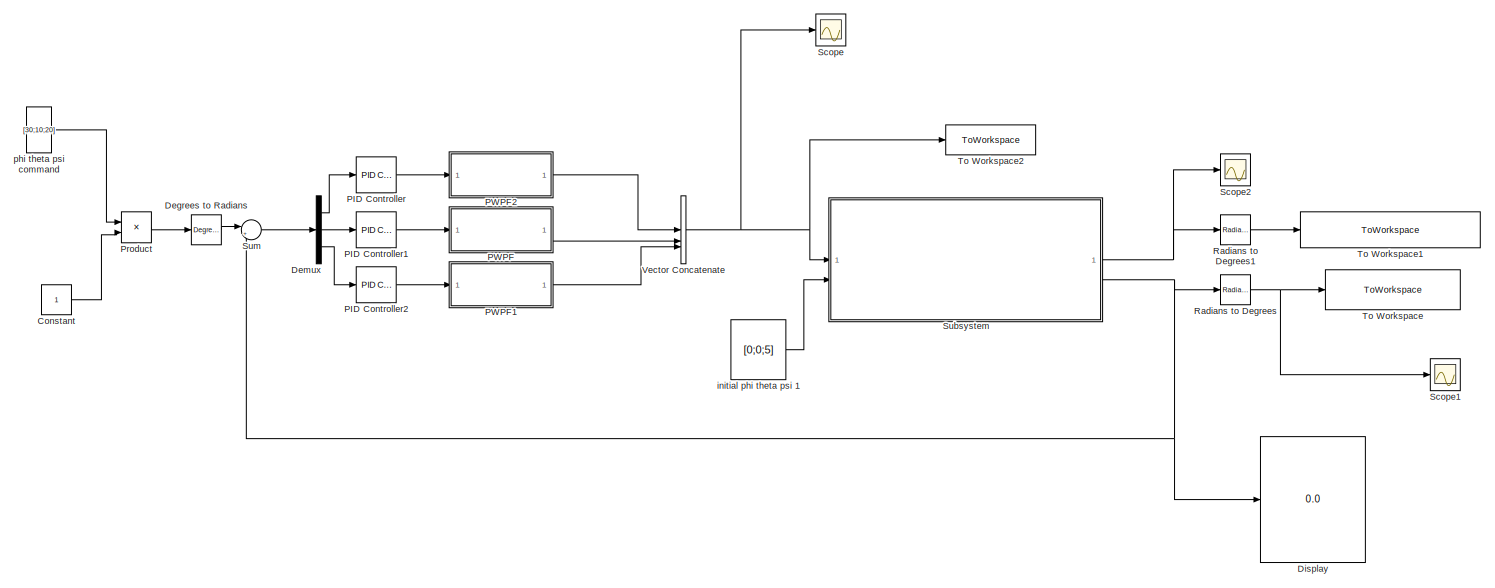
[diagram: root canvas - part 1/2, top center region]
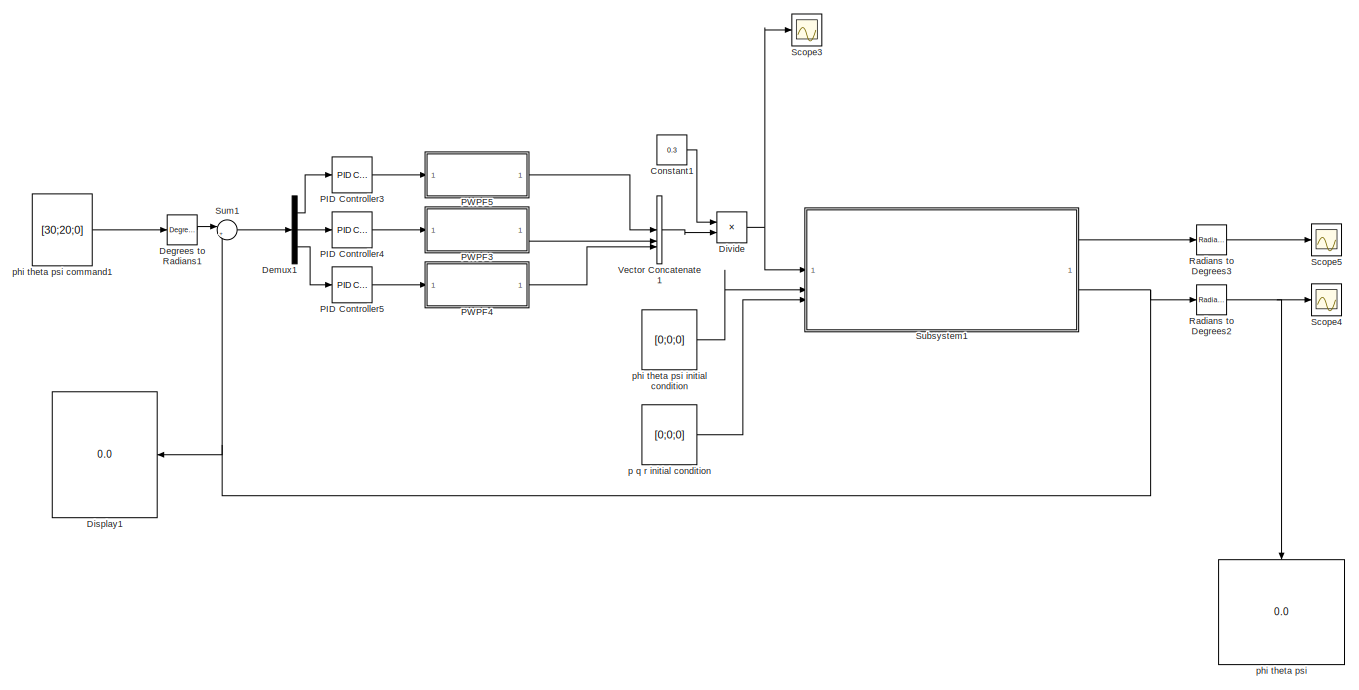
[diagram: root canvas - part 2/2, bottom right region]
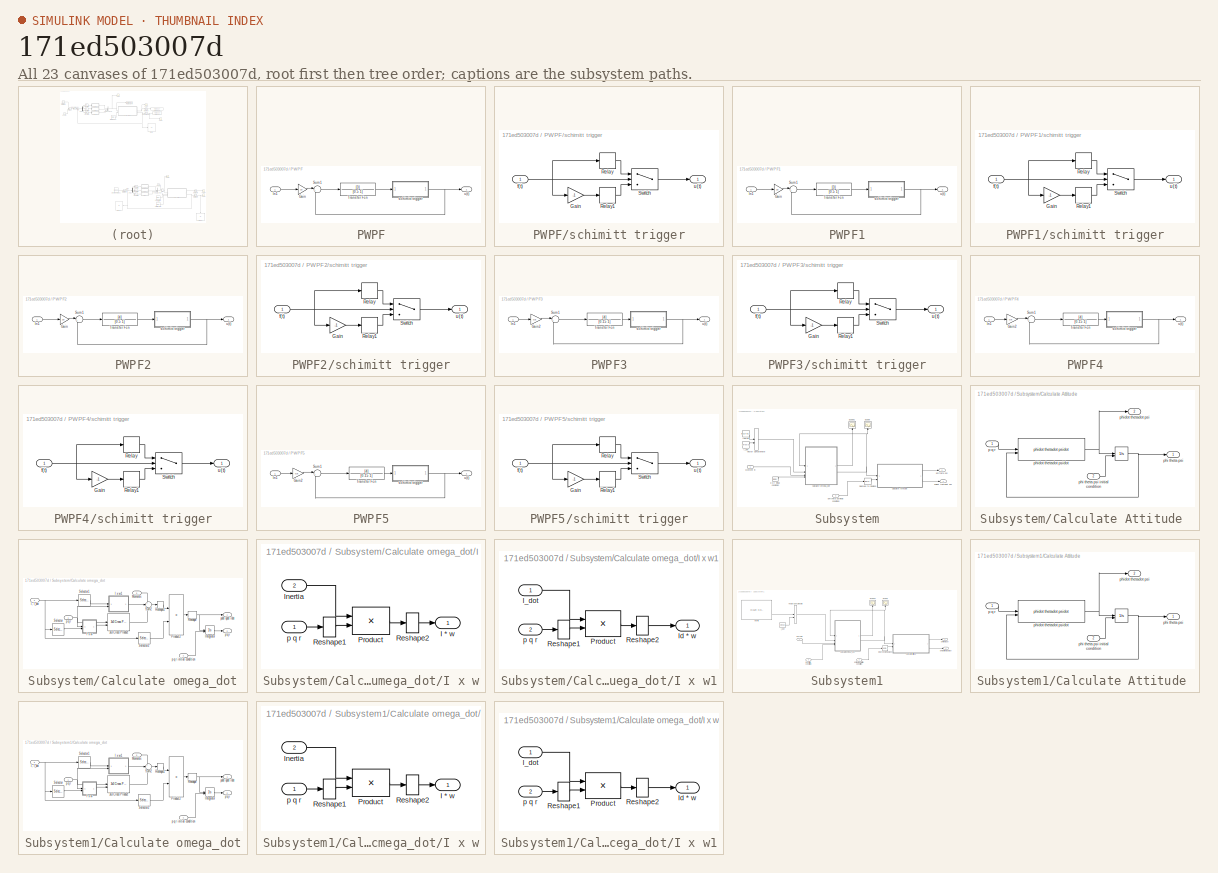
[diagram: thumbnail index - all 23 canvases of the model, root first then tree order]
MODEL slx_171ed503007d
KIND model
CONFIG AbsTol = auto
CONFIG EnableMultiTasking = off
CONFIG FixedStep = 0.001
CONFIG MaxStep = auto
CONFIG MinStep = auto
CONFIG RelTol = 1e-3
CONFIG SampleTimeConstraint = Unconstrained
CONFIG SolverName = FixedStepAuto
CONFIG StartTime = 0
CONFIG StopTime = 250
BLOCK [Constant]  phi theta psi initial condition
  Value = [0;0;0]
BLOCK [Constant] Constant
  Commented = on
BLOCK [Constant] Constant1
  Value = 0.3
BLOCK [Reference] Degrees to Radians  REF=simulink_extras/Transformations/Degrees to
Radians
  Commented = on
  SourceBlock = simulink_extras/Transformations/Degrees to\nRadians
  SourceType = DegreesToRadians
BLOCK [Reference] Degrees to Radians1  REF=simulink_extras/Transformations/Degrees to
Radians
  SourceBlock = simulink_extras/Transformations/Degrees to\nRadians
  SourceType = DegreesToRadians
BLOCK [Demux] Demux
  Commented = on
  Outputs = 3
BLOCK [Demux] Demux1
  Outputs = 3
BLOCK [Display] Display
  Commented = on
  Decimation = 1
BLOCK [Display] Display1
  Decimation = 1
  NameLocation = top
BLOCK [Product] Divide
  Inputs = **
BLOCK [Reference] PID Controller  REF=slpidlib/PID Controller
  Commented = on
  LibrarySourceBlock = simulink/Continuous/PID Controller
  SourceBlock = slpidlib/PID Controller
  SourceType = PID 1dof
BLOCK [Reference] PID Controller1  REF=slpidlib/PID Controller
  Commented = on
  LibrarySourceBlock = simulink/Continuous/PID Controller
  SourceBlock = slpidlib/PID Controller
  SourceType = PID 1dof
BLOCK [Reference] PID Controller2  REF=slpidlib/PID Controller
  Commented = on
  LibrarySourceBlock = simulink/Continuous/PID Controller
  SourceBlock = slpidlib/PID Controller
  SourceType = PID 1dof
BLOCK [Reference] PID Controller3  REF=slpidlib/PID Controller
  LibrarySourceBlock = simulink/Continuous/PID Controller
  SourceBlock = slpidlib/PID Controller
  SourceType = PID 1dof
BLOCK [Reference] PID Controller4  REF=slpidlib/PID Controller
  LibrarySourceBlock = simulink/Continuous/PID Controller
  SourceBlock = slpidlib/PID Controller
  SourceType = PID 1dof
BLOCK [Reference] PID Controller5  REF=slpidlib/PID Controller
  LibrarySourceBlock = simulink/Continuous/PID Controller
  SourceBlock = slpidlib/PID Controller
  SourceType = PID 1dof
BLOCK [SubSystem] PWPF
  Commented = on
BLOCK [Gain] PWPF/Gain
  Gain = 10
BLOCK [Inport] PWPF/In1
BLOCK [Sum] PWPF/Sum1
  Inputs = |+-
BLOCK [TransferFcn] PWPF/Transfer Fcn
  Denominator = [0.5 1]
  Numerator = [3]
BLOCK [SubSystem] PWPF/schimitt trigger
BLOCK [Gain] PWPF/schimitt trigger/Gain
  Gain = -1
BLOCK [Relay] PWPF/schimitt trigger/Relay
  OffSwitchValue = 0.15
  OnOutputValue = 10
  OnSwitchValue = 0.5
BLOCK [Relay] PWPF/schimitt trigger/Relay1
  OffSwitchValue = 0.15
  OnOutputValue = -10
  OnSwitchValue = 0.5
BLOCK [Switch] PWPF/schimitt trigger/Switch
  Criteria = u2 > Threshold
  InputSameDT = off
  SaturateOnIntegerOverflow = off
BLOCK [Inport] PWPF/schimitt trigger/f(t)
BLOCK [Outport] PWPF/schimitt trigger/u(t)
BLOCK [Outport] PWPF/u(t)
BLOCK [SubSystem] PWPF1
  Commented = on
BLOCK [Gain] PWPF1/Gain
  Gain = 10
BLOCK [Inport] PWPF1/In1
BLOCK [Sum] PWPF1/Sum1
  Inputs = |+-
BLOCK [TransferFcn] PWPF1/Transfer Fcn
  Denominator = [0.5 1]
  Numerator = [3]
BLOCK [SubSystem] PWPF1/schimitt trigger
BLOCK [Gain] PWPF1/schimitt trigger/Gain
  Gain = -1
BLOCK [Relay] PWPF1/schimitt trigger/Relay
  OffSwitchValue = 0.15
  OnOutputValue = 10
  OnSwitchValue = 0.5
BLOCK [Relay] PWPF1/schimitt trigger/Relay1
  OffSwitchValue = 0.15
  OnOutputValue = -10
  OnSwitchValue = 0.5
BLOCK [Switch] PWPF1/schimitt trigger/Switch
  Criteria = u2 > Threshold
  InputSameDT = off
  SaturateOnIntegerOverflow = off
BLOCK [Inport] PWPF1/schimitt trigger/f(t)
BLOCK [Outport] PWPF1/schimitt trigger/u(t)
BLOCK [Outport] PWPF1/u(t)
BLOCK [SubSystem] PWPF2
  Commented = on
BLOCK [Gain] PWPF2/Gain
  Gain = 20
BLOCK [Inport] PWPF2/In1
BLOCK [Sum] PWPF2/Sum1
  Inputs = |+-
BLOCK [TransferFcn] PWPF2/Transfer Fcn
  Denominator = [0.5 1]
  Numerator = [4]
BLOCK [SubSystem] PWPF2/schimitt trigger
BLOCK [Gain] PWPF2/schimitt trigger/Gain
  Gain = -1
BLOCK [Relay] PWPF2/schimitt trigger/Relay
  OffSwitchValue = 0.15
  OnOutputValue = 10
  OnSwitchValue = 0.45
BLOCK [Relay] PWPF2/schimitt trigger/Relay1
  OffSwitchValue = 0.15
  OnOutputValue = -10
  OnSwitchValue = 0.45
BLOCK [Switch] PWPF2/schimitt trigger/Switch
  Criteria = u2 > Threshold
  InputSameDT = off
  SaturateOnIntegerOverflow = off
BLOCK [Inport] PWPF2/schimitt trigger/f(t)
BLOCK [Outport] PWPF2/schimitt trigger/u(t)
BLOCK [Outport] PWPF2/u(t)
BLOCK [SubSystem] PWPF3
BLOCK [Gain] PWPF3/Gain2
  Gain = 0.8
BLOCK [Inport] PWPF3/In1
BLOCK [Sum] PWPF3/Sum1
  Inputs = |+-
BLOCK [TransferFcn] PWPF3/Transfer Fcn
  Denominator = [0.15 1]
  Numerator = [4]
BLOCK [SubSystem] PWPF3/schimitt trigger
BLOCK [Gain] PWPF3/schimitt trigger/Gain
  Gain = -1
BLOCK [Relay] PWPF3/schimitt trigger/Relay
  OffSwitchValue = 0.15
  OnOutputValue = 4.5
  OnSwitchValue = 0.5
BLOCK [Relay] PWPF3/schimitt trigger/Relay1
  OffSwitchValue = 0.15
  OnOutputValue = -4.5
  OnSwitchValue = 0.5
BLOCK [Switch] PWPF3/schimitt trigger/Switch
  Criteria = u2 > Threshold
  InputSameDT = off
  SaturateOnIntegerOverflow = off
BLOCK [Inport] PWPF3/schimitt trigger/f(t)
BLOCK [Outport] PWPF3/schimitt trigger/u(t)
BLOCK [Outport] PWPF3/u(t)
BLOCK [SubSystem] PWPF4
BLOCK [Gain] PWPF4/Gain2
  Gain = 0.8
BLOCK [Inport] PWPF4/In1
BLOCK [Sum] PWPF4/Sum1
  Inputs = |+-
BLOCK [TransferFcn] PWPF4/Transfer Fcn
  Denominator = [0.15 1]
  Numerator = [4]
BLOCK [SubSystem] PWPF4/schimitt trigger
BLOCK [Gain] PWPF4/schimitt trigger/Gain
  Gain = -1
BLOCK [Relay] PWPF4/schimitt trigger/Relay
  OffSwitchValue = 0.15
  OnOutputValue = 4.5
  OnSwitchValue = 0.5
BLOCK [Relay] PWPF4/schimitt trigger/Relay1
  OffSwitchValue = 0.15
  OnOutputValue = -4.5
  OnSwitchValue = 0.5
BLOCK [Switch] PWPF4/schimitt trigger/Switch
  Criteria = u2 > Threshold
  InputSameDT = off
  SaturateOnIntegerOverflow = off
BLOCK [Inport] PWPF4/schimitt trigger/f(t)
BLOCK [Outport] PWPF4/schimitt trigger/u(t)
BLOCK [Outport] PWPF4/u(t)
BLOCK [SubSystem] PWPF5
BLOCK [Gain] PWPF5/Gain2
  Gain = 0.8
BLOCK [Inport] PWPF5/In1
BLOCK [Sum] PWPF5/Sum1
  Inputs = |+-
BLOCK [TransferFcn] PWPF5/Transfer Fcn
  Denominator = [0.15 1]
  Numerator = [4]
BLOCK [SubSystem] PWPF5/schimitt trigger
BLOCK [Gain] PWPF5/schimitt trigger/Gain
  Gain = -1
BLOCK [Relay] PWPF5/schimitt trigger/Relay
  OffSwitchValue = 0.15
  OnOutputValue = 4.5
  OnSwitchValue = 0.5
BLOCK [Relay] PWPF5/schimitt trigger/Relay1
  OffSwitchValue = 0.15
  OnOutputValue = -4.5
  OnSwitchValue = 0.5
BLOCK [Switch] PWPF5/schimitt trigger/Switch
  Criteria = u2 > Threshold
  InputSameDT = off
  SaturateOnIntegerOverflow = off
BLOCK [Inport] PWPF5/schimitt trigger/f(t)
BLOCK [Outport] PWPF5/schimitt trigger/u(t)
BLOCK [Outport] PWPF5/u(t)
BLOCK [Product] Product
  Commented = on
BLOCK [Reference] Radians to Degrees  REF=simulink_extras/Transformations/Radians
to Degrees
  Commented = on
  SourceBlock = simulink_extras/Transformations/Radians\nto Degrees
  SourceType = RadiansToDegrees
BLOCK [Reference] Radians to Degrees1  REF=simulink_extras/Transformations/Radians
to Degrees
  Commented = on
  SourceBlock = simulink_extras/Transformations/Radians\nto Degrees
  SourceType = RadiansToDegrees
BLOCK [Reference] Radians to Degrees2  REF=simulink_extras/Transformations/Radians
to Degrees
  SourceBlock = simulink_extras/Transformations/Radians\nto Degrees
  SourceType = RadiansToDegrees
BLOCK [Reference] Radians to Degrees3  REF=simulink_extras/Transformations/Radians
to Degrees
  SourceBlock = simulink_extras/Transformations/Radians\nto Degrees
  SourceType = RadiansToDegrees
BLOCK [Scope] Scope
  Commented = on
  Floating = off
  NumInputPorts = 1
  ScopeSpecificationString = Simulink.scopes.TimeScopeBlockCfg('CurrentConfiguration', extmgr.ConfigurationSet(extmgr.Configuration('Core','General UI',true),extmgr.Configuration('Core','Source UI',true),extmgr.Configuration('Sources','WiredSimulink',true,'DataLoggingVariableName','ScopeData1'),extmgr.Configuration('Visuals','Time Domain',true,'SerializedDisplays',{struct('MinYLimReal','-12.5','MaxYLimReal','0.46874','YLabelR...<+1438ch>
BLOCK [Scope] Scope1
  Commented = on
  Floating = off
  NumInputPorts = 1
  ScopeSpecificationString = Simulink.scopes.TimeScopeBlockCfg('CurrentConfiguration', extmgr.ConfigurationSet(extmgr.Configuration('Core','General UI',true),extmgr.Configuration('Core','Source UI',true),extmgr.Configuration('Sources','WiredSimulink',true,'DataLoggingVariableName','ScopeData2'),extmgr.Configuration('Visuals','Time Domain',true,'SerializedDisplays',{struct('MinYLimReal','-6.56163','MaxYLimReal','59.05466','YLa...<+1454ch>
BLOCK [Scope] Scope2
  Commented = on
  Floating = off
  NumInputPorts = 1
  ScopeSpecificationString = Simulink.scopes.TimeScopeBlockCfg('CurrentConfiguration', extmgr.ConfigurationSet(extmgr.Configuration('Core','General UI',true),extmgr.Configuration('Core','Source UI',true),extmgr.Configuration('Sources','WiredSimulink',true,'DataLoggingVariableName','ScopeData3'),extmgr.Configuration('Visuals','Time Domain',true,'SerializedDisplays',{struct('MinYLimReal','-4.56502','MaxYLimReal','4.88832','YLab...<+1429ch>
BLOCK [Scope] Scope3
  Floating = off
  NumInputPorts = 1
  ScopeSpecificationString = Simulink.scopes.TimeScopeBlockCfg('CurrentConfiguration', extmgr.ConfigurationSet(extmgr.Configuration('Core','General UI',true),extmgr.Configuration('Core','Source UI',true),extmgr.Configuration('Sources','WiredSimulink',true,'DataLoggingVariableName','ScopeData1'),extmgr.Configuration('Visuals','Time Domain',true,'SerializedDisplays',{struct('MinYLimReal','-5.625','MaxYLimReal','5.625','YLabelRe...<+1477ch>
BLOCK [Scope] Scope4
  Floating = off
  NumInputPorts = 1
  ScopeSpecificationString = Simulink.scopes.TimeScopeBlockCfg('CurrentConfiguration', extmgr.ConfigurationSet(extmgr.Configuration('Core','General UI',true),extmgr.Configuration('Core','Source UI',true),extmgr.Configuration('Sources','WiredSimulink',true,'DataLoggingVariableName','ScopeData2'),extmgr.Configuration('Visuals','Time Domain',true,'SerializedDisplays',{struct('MinYLimReal','-15.03251','MaxYLimReal','47.12245','YL...<+1503ch>
BLOCK [Scope] Scope5
  Floating = off
  NumInputPorts = 1
  ScopeSpecificationString = Simulink.scopes.TimeScopeBlockCfg('CurrentConfiguration', extmgr.ConfigurationSet(extmgr.Configuration('Core','General UI',true),extmgr.Configuration('Core','Source UI',true),extmgr.Configuration('Sources','WiredSimulink',true,'DataLoggingVariableName','ScopeData3'),extmgr.Configuration('Visuals','Time Domain',true,'SerializedDisplays',{struct('MinYLimReal','-4.70772','MaxYLimReal','34.74015','YLa...<+1457ch>
BLOCK [SubSystem] Subsystem
  Commented = on
BLOCK [Constant] Subsystem/ p q r initial condition
  Value = [0;0;0]
BLOCK [SubSystem] Subsystem/Calculate Attitude 
BLOCK [Integrator] Subsystem/Calculate Attitude / 
  InitialConditionSource = external
BLOCK [Inport] Subsystem/Calculate Attitude /p q r
BLOCK [Outport] Subsystem/Calculate Attitude /phi theta psi 
BLOCK [Inport] Subsystem/Calculate Attitude /phi theta psi initial condition 
  Port = 2
BLOCK [Outport] Subsystem/Calculate Attitude /phidot thetadot psi
  Port = 2
BLOCK [Reference] Subsystem/Calculate Attitude /phidot thetadot psidot  REF=shared6dofsys/DCM & Euler Angles (Euler)/phidot  (lib defined in slx_91fbb8bad28b)
thetadot
psidot
  SourceBlock = shared6dofsys/DCM & Euler Angles (Euler)/phidot\nthetadot\npsidot
  SourceType = SubSystem
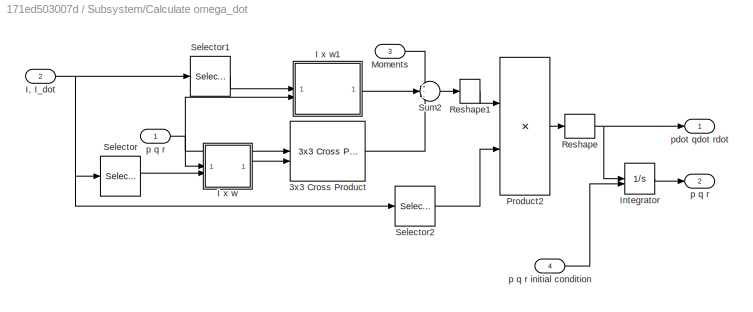
BLOCK [SubSystem] Subsystem/Calculate omega_dot
  AncestorBlock = shared6dofsys/Calculate omega_dot
  LibrarySourceBlock = shared6dofsys/Calculate omega_dot
  PermitHierarchicalResolution = ExplicitOnly
BLOCK [Reference] Subsystem/Calculate omega_dot/3x3 Cross Product  REF=sharedutil/3x3 Cross Product
  SourceBlock = sharedutil/3x3 Cross Product
  SourceType = CrossProduct
BLOCK [SubSystem] Subsystem/Calculate omega_dot/I x w
  NameLocation = top
BLOCK [Outport] Subsystem/Calculate omega_dot/I x w/I * w
  VectorParamsAs1DForOutWhenUnconnected = off
BLOCK [Inport] Subsystem/Calculate omega_dot/I x w/Inertia
  Port = 2
BLOCK [Product] Subsystem/Calculate omega_dot/I x w/Product
  InputSameDT = on
  Multiplication = Matrix(*)
  OutDataTypeStr = Inherit: Same as first input
  SaturateOnIntegerOverflow = on
BLOCK [Reshape] Subsystem/Calculate omega_dot/I x w/Reshape1
  OutputDimensionality = Column vector (2-D)
BLOCK [Reshape] Subsystem/Calculate omega_dot/I x w/Reshape2
BLOCK [Inport] Subsystem/Calculate omega_dot/I x w/p q r
BLOCK [SubSystem] Subsystem/Calculate omega_dot/I x w1
  NameLocation = top
BLOCK [Inport] Subsystem/Calculate omega_dot/I x w1/I_dot
BLOCK [Outport] Subsystem/Calculate omega_dot/I x w1/Id * w
  VectorParamsAs1DForOutWhenUnconnected = off
BLOCK [Product] Subsystem/Calculate omega_dot/I x w1/Product
  InputSameDT = on
  Multiplication = Matrix(*)
  OutDataTypeStr = Inherit: Same as first input
  SaturateOnIntegerOverflow = on
BLOCK [Reshape] Subsystem/Calculate omega_dot/I x w1/Reshape1
  OutputDimensionality = Column vector (2-D)
BLOCK [Reshape] Subsystem/Calculate omega_dot/I x w1/Reshape2
BLOCK [Inport] Subsystem/Calculate omega_dot/I x w1/p q r
  Port = 2
BLOCK [Inport] Subsystem/Calculate omega_dot/I, I_dot
  OutDataTypeStr = double
  Port = 2
BLOCK [Integrator] Subsystem/Calculate omega_dot/Integrator
  InitialConditionSource = external
BLOCK [Inport] Subsystem/Calculate omega_dot/Moments
  OutDataTypeStr = double
  Port = 3
BLOCK [Product] Subsystem/Calculate omega_dot/Product2
  Inputs = */
  Multiplication = Matrix(*)
  NameLocation = top
  OutDataTypeStr = Inherit: Same as first input
  SaturateOnIntegerOverflow = on
BLOCK [Reshape] Subsystem/Calculate omega_dot/Reshape
BLOCK [Reshape] Subsystem/Calculate omega_dot/Reshape1
  OutputDimensionality = Row vector (2-D)
BLOCK [Selector] Subsystem/Calculate omega_dot/Selector
  IndexOptions = Index vector (dialog),Select all
  Indices = 1:3,-1
  InputPortWidth = 2
  NumberOfDimensions = 2
  OutputSizes = 1
BLOCK [Selector] Subsystem/Calculate omega_dot/Selector1
  IndexOptions = Index vector (dialog),Select all
  Indices = 4:6,-1
  InputPortWidth = 2
  NumberOfDimensions = 2
  OutputSizes = 1
BLOCK [Selector] Subsystem/Calculate omega_dot/Selector2
  IndexOptions = Index vector (dialog),Select all
  Indices = 1:3,-1
  InputPortWidth = 2
  NumberOfDimensions = 2
  OutputSizes = 1
BLOCK [Sum] Subsystem/Calculate omega_dot/Sum2
  Inputs = +--
  SaturateOnIntegerOverflow = on
BLOCK [Outport] Subsystem/Calculate omega_dot/p q  r
  Port = 2
BLOCK [Inport] Subsystem/Calculate omega_dot/p q r
  OutDataTypeStr = double
BLOCK [Inport] Subsystem/Calculate omega_dot/p q r initial condition
  Port = 4
BLOCK [Outport] Subsystem/Calculate omega_dot/pdot qdot rdot
  OutDataTypeStr = double
  VectorParamsAs1DForOutWhenUnconnected = off
BLOCK [Reference] Subsystem/Degrees to Radians  REF=simulink_extras/Transformations/Degrees to
Radians
  SourceBlock = simulink_extras/Transformations/Degrees to\nRadians
  SourceType = DegreesToRadians
BLOCK [Constant] Subsystem/I_dot
  Value = zeros(3)
BLOCK [Constant] Subsystem/Inertie
  Value = [0.619 -0.008 0;-0.008 0.782 0;0 0 1.226]
BLOCK [Inport] Subsystem/Moment in
BLOCK [Scope] Subsystem/Scope
  Commented = on
  Floating = off
  NameLocation = right
  NumInputPorts = 1
  ScopeSpecificationString = Simulink.scopes.TimeScopeBlockCfg('CurrentConfiguration', extmgr.ConfigurationSet(extmgr.Configuration('Core','General UI',true),extmgr.Configuration('Core','Source UI',true),extmgr.Configuration('Sources','WiredSimulink',true),extmgr.Configuration('Visuals','Time Domain',true,'SerializedDisplays',{struct('MinYLimReal','-0.03752','MaxYLimReal','0.3375','YLabelReal','','MinYLimMag','0.00000','MaxYL...<+1420ch>
BLOCK [Scope] Subsystem/Scope1
  Floating = off
  NameLocation = right
  NumInputPorts = 1
  ScopeSpecificationString = Simulink.scopes.TimeScopeBlockCfg('CurrentConfiguration', extmgr.ConfigurationSet(extmgr.Configuration('Core','General UI',true),extmgr.Configuration('Core','Source UI',true),extmgr.Configuration('Sources','WiredSimulink',true,'DataLoggingVariableName','ScopeData3'),extmgr.Configuration('Visuals','Time Domain',true,'SerializedDisplays',{struct('MinYLimReal','-11.23403','MaxYLimReal','1.33153','YLa...<+1467ch>
BLOCK [Concatenate] Subsystem/Vector Concatenate
  Mode = Multidimensional array
BLOCK [Outport] Subsystem/phi theta psi 
  Port = 2
BLOCK [Inport] Subsystem/phi theta psi initial condition 
  Port = 2
BLOCK [Outport] Subsystem/phidot thetadot psi
BLOCK [SubSystem] Subsystem1
BLOCK [Inport] Subsystem1/ p q r initial condition
  Port = 3
BLOCK [SubSystem] Subsystem1/Calculate Attitude 
BLOCK [Integrator] Subsystem1/Calculate Attitude / 
  InitialConditionSource = external
BLOCK [Inport] Subsystem1/Calculate Attitude /p q r
BLOCK [Outport] Subsystem1/Calculate Attitude /phi theta psi 
BLOCK [Inport] Subsystem1/Calculate Attitude /phi theta psi initial condition 
  Port = 2
BLOCK [Outport] Subsystem1/Calculate Attitude /phidot thetadot psi
  Port = 2
BLOCK [Reference] Subsystem1/Calculate Attitude /phidot thetadot psidot  REF=shared6dofsys/DCM & Euler Angles (Euler)/phidot  (lib defined in slx_91fbb8bad28b)
thetadot
psidot
  SourceBlock = shared6dofsys/DCM & Euler Angles (Euler)/phidot\nthetadot\npsidot
  SourceType = SubSystem
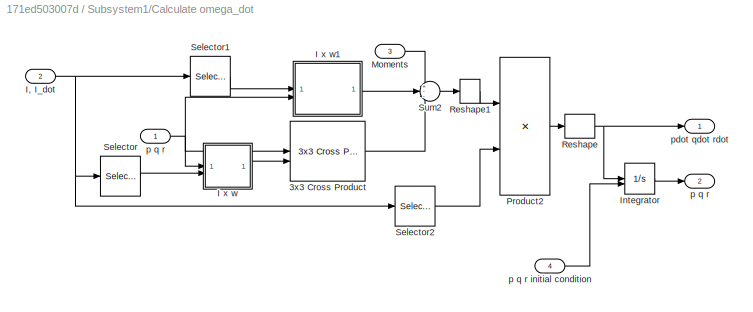
BLOCK [SubSystem] Subsystem1/Calculate omega_dot
  AncestorBlock = shared6dofsys/Calculate omega_dot
  LibrarySourceBlock = shared6dofsys/Calculate omega_dot
  PermitHierarchicalResolution = ExplicitOnly
BLOCK [Reference] Subsystem1/Calculate omega_dot/3x3 Cross Product  REF=sharedutil/3x3 Cross Product
  SourceBlock = sharedutil/3x3 Cross Product
  SourceType = CrossProduct
BLOCK [SubSystem] Subsystem1/Calculate omega_dot/I x w
  NameLocation = top
BLOCK [Outport] Subsystem1/Calculate omega_dot/I x w/I * w
  VectorParamsAs1DForOutWhenUnconnected = off
BLOCK [Inport] Subsystem1/Calculate omega_dot/I x w/Inertia
  Port = 2
BLOCK [Product] Subsystem1/Calculate omega_dot/I x w/Product
  InputSameDT = on
  Multiplication = Matrix(*)
  OutDataTypeStr = Inherit: Same as first input
  SaturateOnIntegerOverflow = on
BLOCK [Reshape] Subsystem1/Calculate omega_dot/I x w/Reshape1
  OutputDimensionality = Column vector (2-D)
BLOCK [Reshape] Subsystem1/Calculate omega_dot/I x w/Reshape2
BLOCK [Inport] Subsystem1/Calculate omega_dot/I x w/p q r
BLOCK [SubSystem] Subsystem1/Calculate omega_dot/I x w1
  NameLocation = top
BLOCK [Inport] Subsystem1/Calculate omega_dot/I x w1/I_dot
BLOCK [Outport] Subsystem1/Calculate omega_dot/I x w1/Id * w
  VectorParamsAs1DForOutWhenUnconnected = off
BLOCK [Product] Subsystem1/Calculate omega_dot/I x w1/Product
  InputSameDT = on
  Multiplication = Matrix(*)
  OutDataTypeStr = Inherit: Same as first input
  SaturateOnIntegerOverflow = on
BLOCK [Reshape] Subsystem1/Calculate omega_dot/I x w1/Reshape1
  OutputDimensionality = Column vector (2-D)
BLOCK [Reshape] Subsystem1/Calculate omega_dot/I x w1/Reshape2
BLOCK [Inport] Subsystem1/Calculate omega_dot/I x w1/p q r
  Port = 2
BLOCK [Inport] Subsystem1/Calculate omega_dot/I, I_dot
  OutDataTypeStr = double
  Port = 2
BLOCK [Integrator] Subsystem1/Calculate omega_dot/Integrator
  InitialConditionSource = external
BLOCK [Inport] Subsystem1/Calculate omega_dot/Moments
  OutDataTypeStr = double
  Port = 3
BLOCK [Product] Subsystem1/Calculate omega_dot/Product2
  Inputs = */
  Multiplication = Matrix(*)
  NameLocation = top
  OutDataTypeStr = Inherit: Same as first input
  SaturateOnIntegerOverflow = on
BLOCK [Reshape] Subsystem1/Calculate omega_dot/Reshape
BLOCK [Reshape] Subsystem1/Calculate omega_dot/Reshape1
  OutputDimensionality = Row vector (2-D)
BLOCK [Selector] Subsystem1/Calculate omega_dot/Selector
  IndexOptions = Index vector (dialog),Select all
  Indices = 1:3,-1
  InputPortWidth = 2
  NumberOfDimensions = 2
  OutputSizes = 1
BLOCK [Selector] Subsystem1/Calculate omega_dot/Selector1
  IndexOptions = Index vector (dialog),Select all
  Indices = 4:6,-1
  InputPortWidth = 2
  NumberOfDimensions = 2
  OutputSizes = 1
BLOCK [Selector] Subsystem1/Calculate omega_dot/Selector2
  IndexOptions = Index vector (dialog),Select all
  Indices = 1:3,-1
  InputPortWidth = 2
  NumberOfDimensions = 2
  OutputSizes = 1
BLOCK [Sum] Subsystem1/Calculate omega_dot/Sum2
  Inputs = +--
  SaturateOnIntegerOverflow = on
BLOCK [Outport] Subsystem1/Calculate omega_dot/p q  r
  Port = 2
BLOCK [Inport] Subsystem1/Calculate omega_dot/p q r
  OutDataTypeStr = double
BLOCK [Inport] Subsystem1/Calculate omega_dot/p q r initial condition
  Port = 4
BLOCK [Outport] Subsystem1/Calculate omega_dot/pdot qdot rdot
  OutDataTypeStr = double
  VectorParamsAs1DForOutWhenUnconnected = off
BLOCK [Reference] Subsystem1/Degrees to Radians  REF=simulink_extras/Transformations/Degrees to
Radians
  SourceBlock = simulink_extras/Transformations/Degrees to\nRadians
  SourceType = DegreesToRadians
BLOCK [Inport] Subsystem1/Force in
BLOCK [Constant] Subsystem1/I_dot
  Value = zeros(3)
BLOCK [Constant] Subsystem1/Inertie
  Value = [0.619 -0.008 0;-0.008 0.782 0;0 0 1.226]
BLOCK [Scope] Subsystem1/Scope
  Commented = on
  Floating = off
  NameLocation = right
  NumInputPorts = 1
  ScopeSpecificationString = Simulink.scopes.TimeScopeBlockCfg('CurrentConfiguration', extmgr.ConfigurationSet(extmgr.Configuration('Core','General UI',true),extmgr.Configuration('Core','Source UI',true),extmgr.Configuration('Sources','WiredSimulink',true),extmgr.Configuration('Visuals','Time Domain',true,'SerializedDisplays',{struct('MinYLimReal','-0.03752','MaxYLimReal','0.3375','YLabelReal','','MinYLimMag','0.00000','MaxYL...<+1420ch>
BLOCK [Scope] Subsystem1/Scope1
  Floating = off
  NameLocation = right
  NumInputPorts = 1
  ScopeSpecificationString = Simulink.scopes.TimeScopeBlockCfg('CurrentConfiguration', extmgr.ConfigurationSet(extmgr.Configuration('Core','General UI',true),extmgr.Configuration('Core','Source UI',true),extmgr.Configuration('Sources','WiredSimulink',true,'DataLoggingVariableName','ScopeData3'),extmgr.Configuration('Visuals','Time Domain',true,'SerializedDisplays',{struct('MinYLimReal','-11.23403','MaxYLimReal','1.33153','YLa...<+1467ch>
BLOCK [Concatenate] Subsystem1/Vector Concatenate
  Mode = Multidimensional array
BLOCK [Outport] Subsystem1/phi theta psi 
  Port = 2
BLOCK [Inport] Subsystem1/phi theta psi initial condition 
  Port = 2
BLOCK [Outport] Subsystem1/phidot thetadot psi
BLOCK [Sum] Sum
  Commented = on
  Inputs = |+-
BLOCK [Sum] Sum1
  Inputs = |+-
BLOCK [ToWorkspace] To Workspace
  Commented = on
  FixptAsFi = on
  MaxDataPoints = inf
  SampleTime = -1
  SaveFormat = Timeseries
  VariableName = phi_theta_psi
BLOCK [ToWorkspace] To Workspace1
  Commented = on
  FixptAsFi = on
  MaxDataPoints = inf
  SampleTime = -1
  SaveFormat = Timeseries
  VariableName = phi_theta_psi_dot
BLOCK [ToWorkspace] To Workspace2
  Commented = on
  FixptAsFi = on
  MaxDataPoints = inf
  SampleTime = -1
  SaveFormat = Timeseries
  VariableName = torque
BLOCK [Concatenate] Vector Concatenate
  Commented = on
  NumInputs = 3
BLOCK [Concatenate] Vector Concatenate1
  NumInputs = 3
BLOCK [Constant] initial phi theta psi 1
  Commented = on
  Value = [0;0;5]
BLOCK [Constant] p q r initial condition
  Value = [0;0;0]
BLOCK [Display] phi theta psi 
  Decimation = 1
  NameLocation = left
BLOCK [Constant] phi theta psi command
  Commented = on
  Value = [30;10;20]
BLOCK [Constant] phi theta psi command1
  Value = [30;20;0]
LINE  phi theta psi initial condition:1 -> Subsystem1:2
LINE Constant1:1 -> Divide:1
LINE Constant:1 -> Product:2
LINE Degrees to Radians1:1 -> Sum1:1
LINE Degrees to Radians:1 -> Sum:1
LINE Demux1:1 -> PID Controller3:1
LINE Demux1:2 -> PID Controller4:1
LINE Demux1:3 -> PID Controller5:1
LINE Demux:1 -> PID Controller:1
LINE Demux:2 -> PID Controller1:1
LINE Demux:3 -> PID Controller2:1
NET Divide:1 -> Scope3:1, Subsystem1:1
LINE PID Controller1:1 -> PWPF:1
LINE PID Controller2:1 -> PWPF1:1
LINE PID Controller3:1 -> PWPF5:1
LINE PID Controller4:1 -> PWPF3:1
LINE PID Controller5:1 -> PWPF4:1
LINE PID Controller:1 -> PWPF2:1
LINE PWPF/Gain:1 -> PWPF/Sum1:1
LINE PWPF/In1:1 -> PWPF/Gain:1
LINE PWPF/Sum1:1 -> PWPF/Transfer Fcn:1
LINE PWPF/Transfer Fcn:1 -> PWPF/schimitt trigger:1
LINE PWPF/schimitt trigger/Gain:1 -> PWPF/schimitt trigger/Relay1:1
LINE PWPF/schimitt trigger/Relay1:1 -> PWPF/schimitt trigger/Switch:3
LINE PWPF/schimitt trigger/Relay:1 -> PWPF/schimitt trigger/Switch:1
LINE PWPF/schimitt trigger/Switch:1 -> PWPF/schimitt trigger/u(t):1
NET PWPF/schimitt trigger/f(t):1 -> PWPF/schimitt trigger/Gain:1, PWPF/schimitt trigger/Relay:1, PWPF/schimitt trigger/Switch:2
NET PWPF/schimitt trigger:1 -> PWPF/Sum1:2, PWPF/u(t):1
LINE PWPF1/Gain:1 -> PWPF1/Sum1:1
LINE PWPF1/In1:1 -> PWPF1/Gain:1
LINE PWPF1/Sum1:1 -> PWPF1/Transfer Fcn:1
LINE PWPF1/Transfer Fcn:1 -> PWPF1/schimitt trigger:1
LINE PWPF1/schimitt trigger/Gain:1 -> PWPF1/schimitt trigger/Relay1:1
LINE PWPF1/schimitt trigger/Relay1:1 -> PWPF1/schimitt trigger/Switch:3
LINE PWPF1/schimitt trigger/Relay:1 -> PWPF1/schimitt trigger/Switch:1
LINE PWPF1/schimitt trigger/Switch:1 -> PWPF1/schimitt trigger/u(t):1
NET PWPF1/schimitt trigger/f(t):1 -> PWPF1/schimitt trigger/Gain:1, PWPF1/schimitt trigger/Relay:1, PWPF1/schimitt trigger/Switch:2
NET PWPF1/schimitt trigger:1 -> PWPF1/Sum1:2, PWPF1/u(t):1
LINE PWPF1:1 -> Vector Concatenate:3
LINE PWPF2/Gain:1 -> PWPF2/Sum1:1
LINE PWPF2/In1:1 -> PWPF2/Gain:1
LINE PWPF2/Sum1:1 -> PWPF2/Transfer Fcn:1
LINE PWPF2/Transfer Fcn:1 -> PWPF2/schimitt trigger:1
LINE PWPF2/schimitt trigger/Gain:1 -> PWPF2/schimitt trigger/Relay1:1
LINE PWPF2/schimitt trigger/Relay1:1 -> PWPF2/schimitt trigger/Switch:3
LINE PWPF2/schimitt trigger/Relay:1 -> PWPF2/schimitt trigger/Switch:1
LINE PWPF2/schimitt trigger/Switch:1 -> PWPF2/schimitt trigger/u(t):1
NET PWPF2/schimitt trigger/f(t):1 -> PWPF2/schimitt trigger/Gain:1, PWPF2/schimitt trigger/Relay:1, PWPF2/schimitt trigger/Switch:2
NET PWPF2/schimitt trigger:1 -> PWPF2/Sum1:2, PWPF2/u(t):1
LINE PWPF2:1 -> Vector Concatenate:1
LINE PWPF3/Gain2:1 -> PWPF3/Sum1:1
LINE PWPF3/In1:1 -> PWPF3/Gain2:1
LINE PWPF3/Sum1:1 -> PWPF3/Transfer Fcn:1
LINE PWPF3/Transfer Fcn:1 -> PWPF3/schimitt trigger:1
LINE PWPF3/schimitt trigger/Gain:1 -> PWPF3/schimitt trigger/Relay1:1
LINE PWPF3/schimitt trigger/Relay1:1 -> PWPF3/schimitt trigger/Switch:3
LINE PWPF3/schimitt trigger/Relay:1 -> PWPF3/schimitt trigger/Switch:1
LINE PWPF3/schimitt trigger/Switch:1 -> PWPF3/schimitt trigger/u(t):1
NET PWPF3/schimitt trigger/f(t):1 -> PWPF3/schimitt trigger/Gain:1, PWPF3/schimitt trigger/Relay:1, PWPF3/schimitt trigger/Switch:2
NET PWPF3/schimitt trigger:1 -> PWPF3/Sum1:2, PWPF3/u(t):1
LINE PWPF3:1 -> Vector Concatenate1:2
LINE PWPF4/Gain2:1 -> PWPF4/Sum1:1
LINE PWPF4/In1:1 -> PWPF4/Gain2:1
LINE PWPF4/Sum1:1 -> PWPF4/Transfer Fcn:1
LINE PWPF4/Transfer Fcn:1 -> PWPF4/schimitt trigger:1
LINE PWPF4/schimitt trigger/Gain:1 -> PWPF4/schimitt trigger/Relay1:1
LINE PWPF4/schimitt trigger/Relay1:1 -> PWPF4/schimitt trigger/Switch:3
LINE PWPF4/schimitt trigger/Relay:1 -> PWPF4/schimitt trigger/Switch:1
LINE PWPF4/schimitt trigger/Switch:1 -> PWPF4/schimitt trigger/u(t):1
NET PWPF4/schimitt trigger/f(t):1 -> PWPF4/schimitt trigger/Gain:1, PWPF4/schimitt trigger/Relay:1, PWPF4/schimitt trigger/Switch:2
NET PWPF4/schimitt trigger:1 -> PWPF4/Sum1:2, PWPF4/u(t):1
LINE PWPF4:1 -> Vector Concatenate1:3
LINE PWPF5/Gain2:1 -> PWPF5/Sum1:1
LINE PWPF5/In1:1 -> PWPF5/Gain2:1
LINE PWPF5/Sum1:1 -> PWPF5/Transfer Fcn:1
LINE PWPF5/Transfer Fcn:1 -> PWPF5/schimitt trigger:1
LINE PWPF5/schimitt trigger/Gain:1 -> PWPF5/schimitt trigger/Relay1:1
LINE PWPF5/schimitt trigger/Relay1:1 -> PWPF5/schimitt trigger/Switch:3
LINE PWPF5/schimitt trigger/Relay:1 -> PWPF5/schimitt trigger/Switch:1
LINE PWPF5/schimitt trigger/Switch:1 -> PWPF5/schimitt trigger/u(t):1
NET PWPF5/schimitt trigger/f(t):1 -> PWPF5/schimitt trigger/Gain:1, PWPF5/schimitt trigger/Relay:1, PWPF5/schimitt trigger/Switch:2
NET PWPF5/schimitt trigger:1 -> PWPF5/Sum1:2, PWPF5/u(t):1
LINE PWPF5:1 -> Vector Concatenate1:1
LINE PWPF:1 -> Vector Concatenate:2
LINE Product:1 -> Degrees to Radians:1
LINE Radians to Degrees1:1 -> To Workspace1:1
NET Radians to Degrees2:1 -> Scope4:1, phi theta psi :1
LINE Radians to Degrees3:1 -> Scope5:1
NET Radians to Degrees:1 -> Scope1:1, To Workspace:1
LINE Subsystem/ p q r initial condition:1 -> Subsystem/Calculate omega_dot:4
NET Subsystem/Calculate Attitude / :1 -> Subsystem/Calculate Attitude /phi theta psi :1, Subsystem/Calculate Attitude /phidot thetadot psidot:2
LINE Subsystem/Calculate Attitude /p q r:1 -> Subsystem/Calculate Attitude /phidot thetadot psidot:1
LINE Subsystem/Calculate Attitude /phi theta psi initial condition :1 -> Subsystem/Calculate Attitude / :2
NET Subsystem/Calculate Attitude /phidot thetadot psidot:1 -> Subsystem/Calculate Attitude / :1, Subsystem/Calculate Attitude /phidot thetadot psi:1
LINE Subsystem/Calculate Attitude :1 -> Subsystem/phi theta psi :1
LINE Subsystem/Calculate Attitude :2 -> Subsystem/phidot thetadot psi:1
LINE Subsystem/Calculate omega_dot:1 -> Subsystem/Scope1:1
NET Subsystem/Calculate omega_dot:2 -> Subsystem/Calculate Attitude :1, Subsystem/Calculate omega_dot:1, Subsystem/Scope:1
LINE Subsystem/Degrees to Radians:1 -> Subsystem/Calculate Attitude :2
LINE Subsystem/I_dot:1 -> Subsystem/Vector Concatenate:2
LINE Subsystem/Inertie:1 -> Subsystem/Vector Concatenate:1
LINE Subsystem/Moment in:1 -> Subsystem/Calculate omega_dot:3
LINE Subsystem/Vector Concatenate:1 -> Subsystem/Calculate omega_dot:2
LINE Subsystem/phi theta psi initial condition :1 -> Subsystem/Degrees to Radians:1
LINE Subsystem1/ p q r initial condition:1 -> Subsystem1/Calculate omega_dot:4
NET Subsystem1/Calculate Attitude / :1 -> Subsystem1/Calculate Attitude /phi theta psi :1, Subsystem1/Calculate Attitude /phidot thetadot psidot:2
LINE Subsystem1/Calculate Attitude /p q r:1 -> Subsystem1/Calculate Attitude /phidot thetadot psidot:1
LINE Subsystem1/Calculate Attitude /phi theta psi initial condition :1 -> Subsystem1/Calculate Attitude / :2
NET Subsystem1/Calculate Attitude /phidot thetadot psidot:1 -> Subsystem1/Calculate Attitude / :1, Subsystem1/Calculate Attitude /phidot thetadot psi:1
LINE Subsystem1/Calculate Attitude :1 -> Subsystem1/phi theta psi :1
LINE Subsystem1/Calculate Attitude :2 -> Subsystem1/phidot thetadot psi:1
LINE Subsystem1/Calculate omega_dot:1 -> Subsystem1/Scope1:1
NET Subsystem1/Calculate omega_dot:2 -> Subsystem1/Calculate Attitude :1, Subsystem1/Calculate omega_dot:1, Subsystem1/Scope:1
LINE Subsystem1/Degrees to Radians:1 -> Subsystem1/Calculate Attitude :2
LINE Subsystem1/Force in:1 -> Subsystem1/Calculate omega_dot:3
LINE Subsystem1/I_dot:1 -> Subsystem1/Vector Concatenate:2
LINE Subsystem1/Inertie:1 -> Subsystem1/Vector Concatenate:1
LINE Subsystem1/Vector Concatenate:1 -> Subsystem1/Calculate omega_dot:2
LINE Subsystem1/phi theta psi initial condition :1 -> Subsystem1/Degrees to Radians:1
LINE Subsystem1:1 -> Radians to Degrees3:1
NET Subsystem1:2 -> Display1:1, Radians to Degrees2:1, Sum1:2
NET Subsystem:1 -> Radians to Degrees1:1, Scope2:1
NET Subsystem:2 -> Display:1, Radians to Degrees:1, Sum:2
LINE Sum1:1 -> Demux1:1
LINE Sum:1 -> Demux:1
LINE Vector Concatenate1:1 -> Divide:2
NET Vector Concatenate:1 -> Scope:1, Subsystem:1, To Workspace2:1
LINE initial phi theta psi 1:1 -> Subsystem:2
LINE p q r initial condition:1 -> Subsystem1:3
LINE phi theta psi command1:1 -> Degrees to Radians1:1
LINE phi theta psi command:1 -> Product:1
note: NET lines group one-source signal fan-out (src -> all destinations, sorted); 1:1 wires keep LINE
